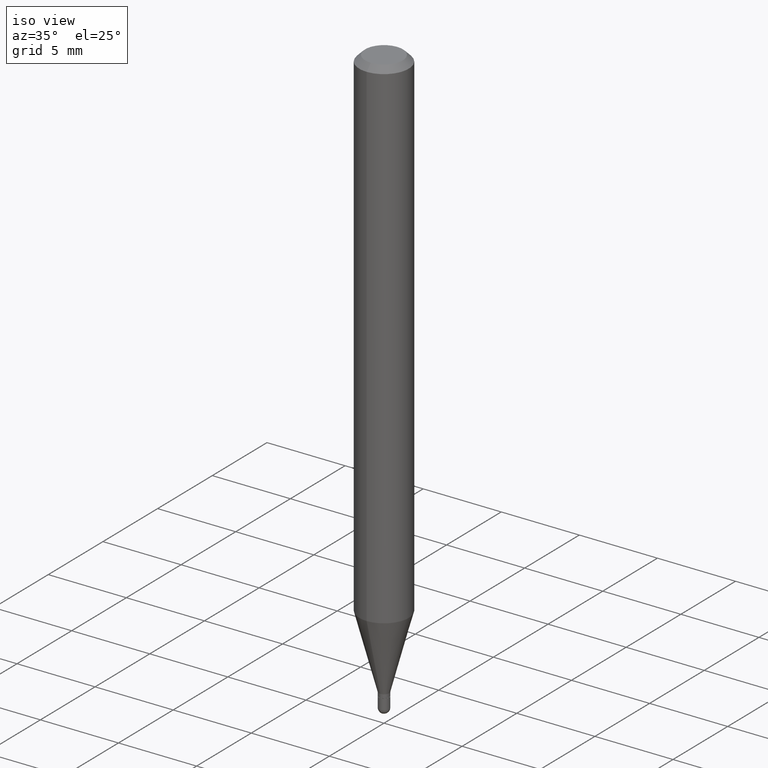
[diagram: clean part render]
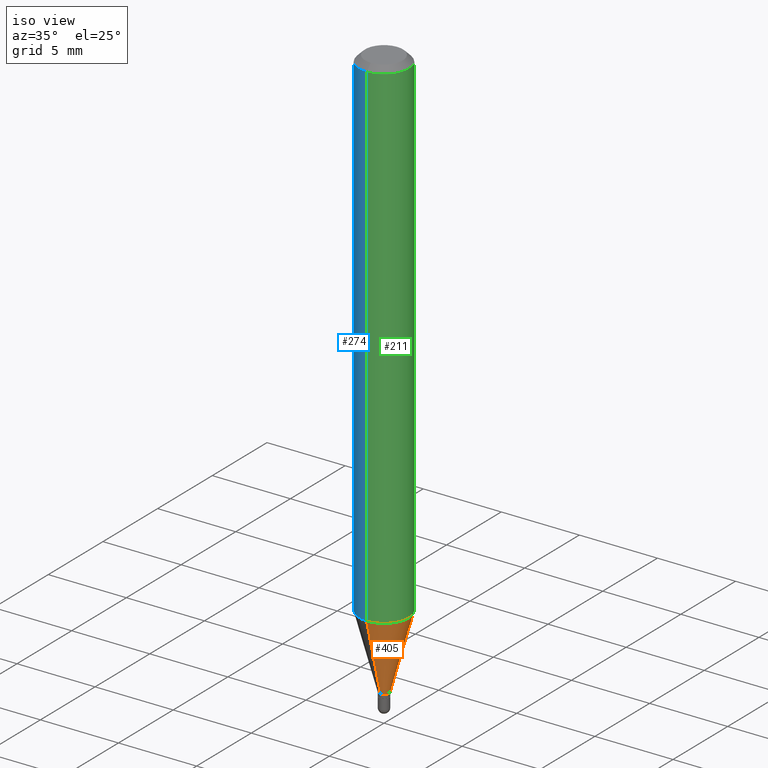
[diagram: same view with three faces highlighted in distinct colors, each labeled with its STEP entity id]
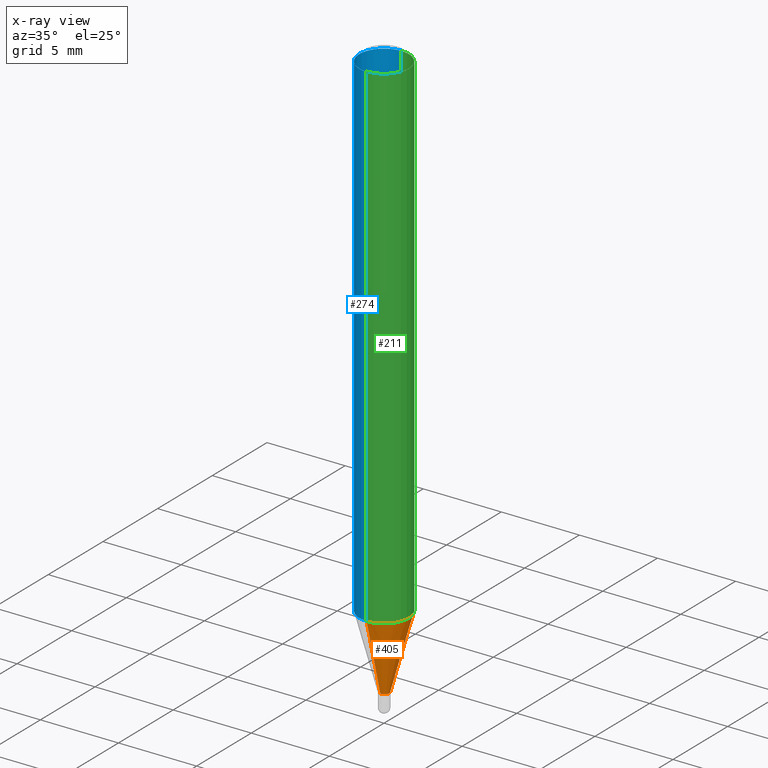
[diagram: x-ray of the same camera — body ghosted, the three highlighted faces saturated]
A machine part, iso view with three faces highlighted in distinct colors.
The next image is the same camera in x-ray (body ghosted, the three faces saturated) — at least one of them is partly hidden behind the body in this view.
Their STEP definitions:

[orange] entity #405 — the highlighted conical surface has half-angle 15 deg.
#1 = AXIS2_PLACEMENT_3D ( 'NONE', #6, #315, #164 ) ;
#6 = CARTESIAN_POINT ( 'NONE',  ( 3.096622609945466894E-29, -4.421114195297001203E-15, -1.266263485025340918 ) ) ;
#11 = EDGE_CURVE ( 'NONE', #55, #254, #79, .T. ) ;
#12 = DIRECTION ( 'NONE',  ( -6.982962677686266711E-15, -1.000000000000000000, 0.000000000000000000 ) ) ;
#20 = LINE ( 'NONE', #301, #418 ) ;
#24 = VERTEX_POINT ( 'NONE', #423 ) ;
#29 = DIRECTION ( 'NONE',  ( 1.839019923739598738E-15, 0.2588190451025247363, 0.9659258262890673130 ) ) ;
#30 = EDGE_CURVE ( 'NONE', #254, #24, #189, .T. ) ;
#50 = CARTESIAN_POINT ( 'NONE',  ( 3.548392147579738179E-29, -5.066115206858047918E-15, -1.451000000000000068 ) ) ;
#55 = VERTEX_POINT ( 'NONE', #224 ) ;
#79 = CIRCLE ( 'NONE', #174, 0.01299999999999992134 ) ;
#104 = ORIENTED_EDGE ( 'NONE', *, *, #30, .T. ) ;
#145 = DIRECTION ( 'NONE',  ( -2.445480460082520915E-29, 3.491464649798792437E-15, 1.000000000000000000 ) ) ;
#157 = CIRCLE ( 'NONE', #1, 0.06250000000000000000 ) ;
#163 = EDGE_LOOP ( 'NONE', ( #282, #104, #399, #200 ) ) ;
#164 = DIRECTION ( 'NONE',  ( -6.982962677686265922E-15, -1.000000000000000000, 4.370956789862821150E-15 ) ) ;
#174 = AXIS2_PLACEMENT_3D ( 'NONE', #308, #145, #415 ) ;
#188 = AXIS2_PLACEMENT_3D ( 'NONE', #50, #207, #12 ) ;
#189 = LINE ( 'NONE', #385, #504 ) ;
#194 = CONICAL_SURFACE ( 'NONE', #188, 0.01299999999999992134, 0.2617993877991500740 ) ;
#199 = CARTESIAN_POINT ( 'NONE',  ( 2.682298827494708454E-16, 0.01299999999999485421, -1.451000000000000068 ) ) ;
#200 = ORIENTED_EDGE ( 'NONE', *, *, #314, .F. ) ;
#207 = DIRECTION ( 'NONE',  ( -2.445480460082520915E-29, 3.491464649798792437E-15, 1.000000000000000000 ) ) ;
#224 = CARTESIAN_POINT ( 'NONE',  ( -9.077851480988543552E-17, -0.01300000000000498847, -1.451000000000000068 ) ) ;
#253 = EDGE_CURVE ( 'NONE', #299, #24, #157, .T. ) ;
#254 = VERTEX_POINT ( 'NONE', #199 ) ;
#282 = ORIENTED_EDGE ( 'NONE', *, *, #11, .T. ) ;
#299 = VERTEX_POINT ( 'NONE', #370 ) ;
#301 = CARTESIAN_POINT ( 'NONE',  ( -9.077851480988543552E-17, -0.01300000000000498847, -1.451000000000000068 ) ) ;
#308 = CARTESIAN_POINT ( 'NONE',  ( 3.548392147579738179E-29, -5.066115206858047918E-15, -1.451000000000000068 ) ) ;
#314 = EDGE_CURVE ( 'NONE', #55, #299, #20, .T. ) ;
#315 = DIRECTION ( 'NONE',  ( -2.445480460082520915E-29, 3.491464649798792437E-15, 1.000000000000000000 ) ) ;
#370 = CARTESIAN_POINT ( 'NONE',  ( -4.364351673553606573E-16, -0.06250000000000442701, -1.266263485025340696 ) ) ;
#385 = CARTESIAN_POINT ( 'NONE',  ( 9.237055564884793934E-17, 0.01299999999999485421, -1.451000000000000068 ) ) ;
#399 = ORIENTED_EDGE ( 'NONE', *, *, #253, .F. ) ;
#405 = ADVANCED_FACE ( 'NONE', ( #409 ), #194, .T. ) ;
#409 = FACE_OUTER_BOUND ( 'NONE', #163, .T. ) ;
#415 = DIRECTION ( 'NONE',  ( -6.982962677686266711E-15, -1.000000000000000000, 0.000000000000000000 ) ) ;
#418 = VECTOR ( 'NONE', #450, 39.37007874015748854 ) ;
#423 = CARTESIAN_POINT ( 'NONE',  ( 4.440892098500932831E-16, 0.06249999999999556605, -1.266263485025341140 ) ) ;
#450 = DIRECTION ( 'NONE',  ( -1.807323732225328562E-15, -0.2588190451025179639, 0.9659258262890690894 ) ) ;
#504 = VECTOR ( 'NONE', #29, 39.37007874015748854 ) ;

[blue] entity #274 — the highlighted cylindrical surface (edge-blend (fillet) strip) has radius 1.5875 mm, axis along (-0, 0, 1).
#21 = CARTESIAN_POINT ( 'NONE',  ( 0.000000000000000000, 0.000000000000000000, 0.000000000000000000 ) ) ;
#23 = AXIS2_PLACEMENT_3D ( 'NONE', #193, #307, #105 ) ;
#24 = VERTEX_POINT ( 'NONE', #423 ) ;
#43 = ORIENTED_EDGE ( 'NONE', *, *, #363, .T. ) ;
#92 = CIRCLE ( 'NONE', #23, 0.06250000000000000000 ) ;
#100 = CARTESIAN_POINT ( 'NONE',  ( -4.364351673553912750E-16, -0.06250000000000005551, -0.01499999999999979128 ) ) ;
#105 = DIRECTION ( 'NONE',  ( -6.982962677686265922E-15, -1.000000000000000000, 3.483106191921935554E-15 ) ) ;
#118 = CARTESIAN_POINT ( 'NONE',  ( 4.440892098500936776E-16, 0.06249999999999993755, -0.01500000000000022669 ) ) ;
#122 = CARTESIAN_POINT ( 'NONE',  ( 4.440892098500625669E-16, 0.06250000000000000000, -2.182165406124245273E-16 ) ) ;
#166 = EDGE_CURVE ( 'NONE', #24, #492, #286, .T. ) ;
#181 = ORIENTED_EDGE ( 'NONE', *, *, #500, .F. ) ;
#193 = CARTESIAN_POINT ( 'NONE',  ( 3.668220690123783877E-31, -5.237196974698191565E-17, -0.01500000000000000812 ) ) ;
#208 = DIRECTION ( 'NONE',  ( -2.445480460082520915E-29, 3.491464649798792437E-15, 1.000000000000000000 ) ) ;
#213 = FACE_OUTER_BOUND ( 'NONE', #360, .T. ) ;
#218 = CIRCLE ( 'NONE', #309, 0.06250000000000000000 ) ;
#244 = DIRECTION ( 'NONE',  ( -6.982962677686265922E-15, -1.000000000000000000, 4.370956789862821150E-15 ) ) ;
#255 = LINE ( 'NONE', #454, #470 ) ;
#269 = ORIENTED_EDGE ( 'NONE', *, *, #304, .T. ) ;
#273 = VERTEX_POINT ( 'NONE', #100 ) ;
#274 = ADVANCED_FACE ( 'NONE', ( #213 ), #376, .T. ) ;
#286 = LINE ( 'NONE', #122, #330 ) ;
#298 = DIRECTION ( 'NONE',  ( -2.445480460082520915E-29, 3.491464649798792832E-15, 1.000000000000000000 ) ) ;
#299 = VERTEX_POINT ( 'NONE', #370 ) ;
#304 = EDGE_CURVE ( 'NONE', #24, #299, #218, .T. ) ;
#307 = DIRECTION ( 'NONE',  ( -2.445480460082520915E-29, 3.491464649798792437E-15, 1.000000000000000000 ) ) ;
#309 = AXIS2_PLACEMENT_3D ( 'NONE', #407, #375, #244 ) ;
#330 = VECTOR ( 'NONE', #389, 39.37007874015748143 ) ;
#360 = EDGE_LOOP ( 'NONE', ( #473, #269, #43, #181 ) ) ;
#363 = EDGE_CURVE ( 'NONE', #299, #273, #255, .T. ) ;
#370 = CARTESIAN_POINT ( 'NONE',  ( -4.364351673553606573E-16, -0.06250000000000442701, -1.266263485025340696 ) ) ;
#375 = DIRECTION ( 'NONE',  ( -2.445480460082520915E-29, 3.491464649798792437E-15, 1.000000000000000000 ) ) ;
#376 = CYLINDRICAL_SURFACE ( 'NONE', #427, 0.06250000000000000000 ) ;
#389 = DIRECTION ( 'NONE',  ( -2.445480460082520915E-29, 3.491464649798792832E-15, 1.000000000000000000 ) ) ;
#407 = CARTESIAN_POINT ( 'NONE',  ( 3.096622609945466894E-29, -4.421114195297001203E-15, -1.266263485025340918 ) ) ;
#423 = CARTESIAN_POINT ( 'NONE',  ( 4.440892098500932831E-16, 0.06249999999999556605, -1.266263485025341140 ) ) ;
#427 = AXIS2_PLACEMENT_3D ( 'NONE', #21, #208, #445 ) ;
#445 = DIRECTION ( 'NONE',  ( -6.982962677686265922E-15, -1.000000000000000000, 3.491464649798792437E-15 ) ) ;
#454 = CARTESIAN_POINT ( 'NONE',  ( -4.364351673553916201E-16, -0.06250000000000000000, 2.182165406124245273E-16 ) ) ;
#470 = VECTOR ( 'NONE', #298, 39.37007874015748143 ) ;
#473 = ORIENTED_EDGE ( 'NONE', *, *, #166, .F. ) ;
#492 = VERTEX_POINT ( 'NONE', #118 ) ;
#500 = EDGE_CURVE ( 'NONE', #492, #273, #92, .T. ) ;

[green] entity #211 — the highlighted cylindrical surface (edge-blend (fillet) strip) has radius 1.5875 mm, axis along (-0, 0, 1).
#1 = AXIS2_PLACEMENT_3D ( 'NONE', #6, #315, #164 ) ;
#6 = CARTESIAN_POINT ( 'NONE',  ( 3.096622609945466894E-29, -4.421114195297001203E-15, -1.266263485025340918 ) ) ;
#22 = ORIENTED_EDGE ( 'NONE', *, *, #363, .F. ) ;
#24 = VERTEX_POINT ( 'NONE', #423 ) ;
#56 = AXIS2_PLACEMENT_3D ( 'NONE', #116, #75, #397 ) ;
#69 = ORIENTED_EDGE ( 'NONE', *, *, #253, .T. ) ;
#75 = DIRECTION ( 'NONE',  ( -2.445480460082520915E-29, 3.491464649798792437E-15, 1.000000000000000000 ) ) ;
#98 = CARTESIAN_POINT ( 'NONE',  ( 3.668220690123783877E-31, -5.237196974698191565E-17, -0.01500000000000000812 ) ) ;
#100 = CARTESIAN_POINT ( 'NONE',  ( -4.364351673553912750E-16, -0.06250000000000005551, -0.01499999999999979128 ) ) ;
#102 = ORIENTED_EDGE ( 'NONE', *, *, #166, .T. ) ;
#116 = CARTESIAN_POINT ( 'NONE',  ( 0.000000000000000000, 0.000000000000000000, 0.000000000000000000 ) ) ;
#118 = CARTESIAN_POINT ( 'NONE',  ( 4.440892098500936776E-16, 0.06249999999999993755, -0.01500000000000022669 ) ) ;
#122 = CARTESIAN_POINT ( 'NONE',  ( 4.440892098500625669E-16, 0.06250000000000000000, -2.182165406124245273E-16 ) ) ;
#157 = CIRCLE ( 'NONE', #1, 0.06250000000000000000 ) ;
#164 = DIRECTION ( 'NONE',  ( -6.982962677686265922E-15, -1.000000000000000000, 4.370956789862821150E-15 ) ) ;
#166 = EDGE_CURVE ( 'NONE', #24, #492, #286, .T. ) ;
#176 = DIRECTION ( 'NONE',  ( -2.445480460082520915E-29, 3.491464649798792437E-15, 1.000000000000000000 ) ) ;
#211 = ADVANCED_FACE ( 'NONE', ( #237 ), #228, .T. ) ;
#228 = CYLINDRICAL_SURFACE ( 'NONE', #56, 0.06250000000000000000 ) ;
#237 = FACE_OUTER_BOUND ( 'NONE', #368, .T. ) ;
#251 = DIRECTION ( 'NONE',  ( -6.982962677686265922E-15, -1.000000000000000000, 3.483106191921935554E-15 ) ) ;
#253 = EDGE_CURVE ( 'NONE', #299, #24, #157, .T. ) ;
#255 = LINE ( 'NONE', #454, #470 ) ;
#256 = EDGE_CURVE ( 'NONE', #273, #492, #349, .T. ) ;
#273 = VERTEX_POINT ( 'NONE', #100 ) ;
#286 = LINE ( 'NONE', #122, #330 ) ;
#294 = AXIS2_PLACEMENT_3D ( 'NONE', #98, #176, #251 ) ;
#298 = DIRECTION ( 'NONE',  ( -2.445480460082520915E-29, 3.491464649798792832E-15, 1.000000000000000000 ) ) ;
#299 = VERTEX_POINT ( 'NONE', #370 ) ;
#315 = DIRECTION ( 'NONE',  ( -2.445480460082520915E-29, 3.491464649798792437E-15, 1.000000000000000000 ) ) ;
#330 = VECTOR ( 'NONE', #389, 39.37007874015748143 ) ;
#349 = CIRCLE ( 'NONE', #294, 0.06250000000000000000 ) ;
#363 = EDGE_CURVE ( 'NONE', #299, #273, #255, .T. ) ;
#368 = EDGE_LOOP ( 'NONE', ( #69, #102, #374, #22 ) ) ;
#370 = CARTESIAN_POINT ( 'NONE',  ( -4.364351673553606573E-16, -0.06250000000000442701, -1.266263485025340696 ) ) ;
#374 = ORIENTED_EDGE ( 'NONE', *, *, #256, .F. ) ;
#389 = DIRECTION ( 'NONE',  ( -2.445480460082520915E-29, 3.491464649798792832E-15, 1.000000000000000000 ) ) ;
#397 = DIRECTION ( 'NONE',  ( -6.982962677686265922E-15, -1.000000000000000000, 3.491464649798792437E-15 ) ) ;
#423 = CARTESIAN_POINT ( 'NONE',  ( 4.440892098500932831E-16, 0.06249999999999556605, -1.266263485025341140 ) ) ;
#454 = CARTESIAN_POINT ( 'NONE',  ( -4.364351673553916201E-16, -0.06250000000000000000, 2.182165406124245273E-16 ) ) ;
#470 = VECTOR ( 'NONE', #298, 39.37007874015748143 ) ;
#492 = VERTEX_POINT ( 'NONE', #118 ) ;